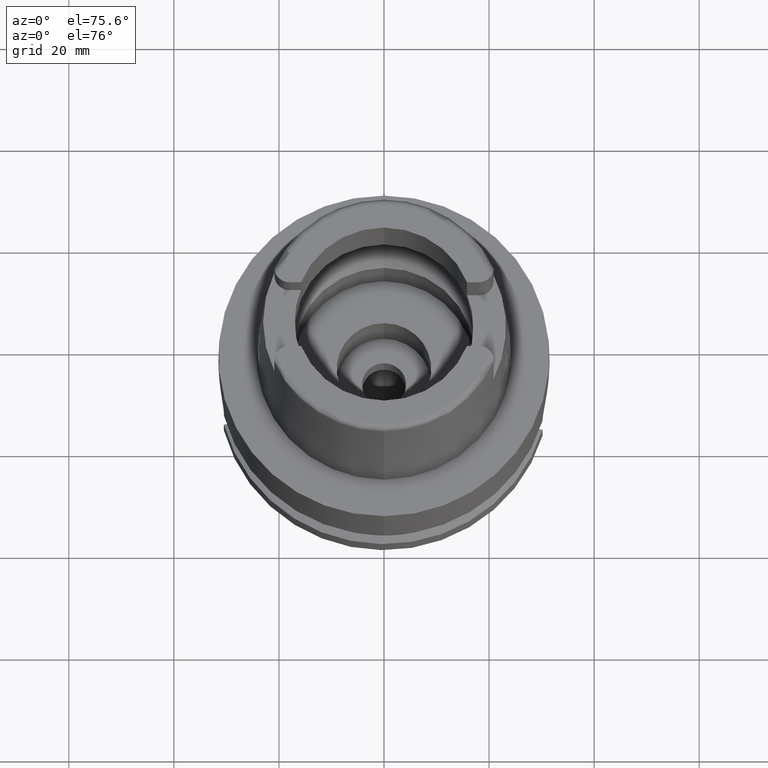
[diagram: clean part render]
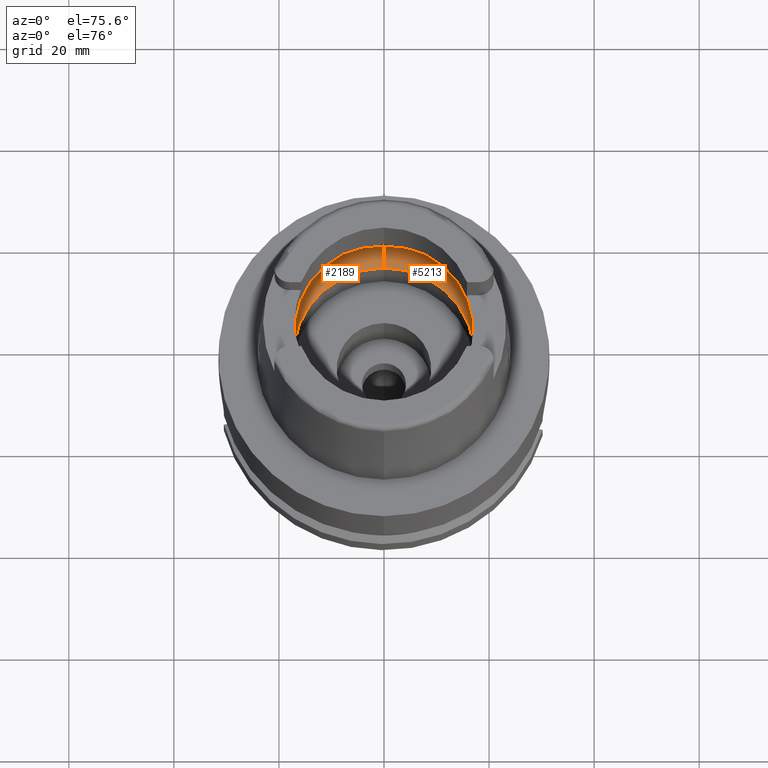
[diagram: same view with one multi-face feature highlighted, each face labeled with its STEP entity id]
A machine part, auxiliary view. The highlighted faces form ONE feature: a constant-radius fillet chain: 2 tangent blend faces with common blend radius 8 mm. The faces share edges in the B-rep.
Their STEP definitions:
[1] entity #2189 (Torus):
#1 = ORIENTED_EDGE ( 'NONE', *, *, #5204, .F. ) ;
#68 = CARTESIAN_POINT ( 'NONE',  ( 0.0000000000000000000, 20.00000000000000000, 6.186348233825000875 ) ) ;
#105 = CARTESIAN_POINT ( 'NONE',  ( -19.90996177496829489, 1.795767083468379210, 5.670284047755099088 ) ) ;
#131 = EDGE_CURVE ( 'NONE', #1648, #906, #5195, .T. ) ;
#136 = CARTESIAN_POINT ( 'NONE',  ( -19.93856738032333809, 0.8183990517462441661, 5.338642722792194206 ) ) ;
#287 = ORIENTED_EDGE ( 'NONE', *, *, #5310, .T. ) ;
#331 = DIRECTION ( 'NONE',  ( -0.9922879323327794543, 0.1239542631244973381, 0.0000000000000000000 ) ) ;
#374 = CARTESIAN_POINT ( 'NONE',  ( -19.92467852483092017, -1.357963622241911139, 5.504503570019525505 ) ) ;
#547 = CARTESIAN_POINT ( 'NONE',  ( -19.93655272268687639, 0.9259470818443067408, 5.364515645285496959 ) ) ;
#778 = CARTESIAN_POINT ( 'NONE',  ( 0.0000000000000000000, -17.25000000000000000, 0.1500000000000999700 ) ) ;
#789 = DIRECTION ( 'NONE',  ( 0.0000000000000000000, 1.000000000000000000, 0.0000000000000000000 ) ) ;
#818 = CARTESIAN_POINT ( 'NONE',  ( 0.0000000000000000000, 0.0000000000000000000, 6.186348233825000875 ) ) ;
#830 = DIRECTION ( 'NONE',  ( 0.0000000000000000000, -1.000000000000000000, 0.0000000000000000000 ) ) ;
#906 = VERTEX_POINT ( 'NONE', #1297 ) ;
#951 = AXIS2_PLACEMENT_3D ( 'NONE', #818, #2120, #331 ) ;
#1058 = CARTESIAN_POINT ( 'NONE',  ( -19.93096204774570879, 1.157762075072081620, 5.432521242665883321 ) ) ;
#1089 = CARTESIAN_POINT ( 'NONE',  ( -19.94501428475999916, 0.2479290550739760568, 5.249999999999999112 ) ) ;
#1182 = CARTESIAN_POINT ( 'NONE',  ( -19.86454009060478398, -2.328734643576319652, 6.053875549024845704 ) ) ;
#1237 = CARTESIAN_POINT ( 'NONE',  ( -19.94501428475999916, -0.4959087842382808309, 5.249999999999998224 ) ) ;
#1297 = CARTESIAN_POINT ( 'NONE',  ( -19.84575864665999845, -2.479085262491000030, 6.186348233825000875 ) ) ;
#1314 = CARTESIAN_POINT ( 'NONE',  ( -19.92208718948823076, -1.429900174883156350, 5.533077591732342704 ) ) ;
#1320 = DIRECTION ( 'NONE',  ( 0.0000000000000000000, 1.000000000000000000, 0.0000000000000000000 ) ) ;
#1508 = VERTEX_POINT ( 'NONE', #5577 ) ;
#1565 = CARTESIAN_POINT ( 'NONE',  ( 0.0000000000000000000, -12.00000000000000000, 6.186348233825000875 ) ) ;
#1568 = VERTEX_POINT ( 'NONE', #2556 ) ;
#1595 = TOROIDAL_SURFACE ( 'NONE', #4776, 12.00000000000000000, 8.000000000000000000 ) ;
#1648 = VERTEX_POINT ( 'NONE', #4788 ) ;
#1663 = EDGE_LOOP ( 'NONE', ( #1933, #1, #2192, #287, #5545, #4476, #4730 ) ) ;
#1708 = CARTESIAN_POINT ( 'NONE',  ( -19.90056925889987127, -1.871018165099524122, 5.748162139564427342 ) ) ;
#1746 = DIRECTION ( 'NONE',  ( 0.0000000000000000000, 0.6562500000000006661, -0.7545435292281016393 ) ) ;
#1933 = ORIENTED_EDGE ( 'NONE', *, *, #131, .F. ) ;
#1955 = CARTESIAN_POINT ( 'NONE',  ( -19.92591906827003001, 1.321585501799986462, 5.490587994735173893 ) ) ;
#2020 = AXIS2_PLACEMENT_3D ( 'NONE', #4631, #2989, #830 ) ;
#2080 = CARTESIAN_POINT ( 'NONE',  ( -19.91448717745985775, -1.610408095139941542, 5.612876396282293179 ) ) ;
#2085 = CARTESIAN_POINT ( 'NONE',  ( 0.0000000000000000000, 0.0000000000000000000, 0.1500000000000999700 ) ) ;
#2108 = EDGE_CURVE ( 'NONE', #1568, #2867, #5505, .T. ) ;
#2120 = DIRECTION ( 'NONE',  ( 0.0000000000000000000, 0.0000000000000000000, -1.000000000000000000 ) ) ;
#2152 = CIRCLE ( 'NONE', #5336, 7.999999999999992895 ) ;
#2189 = ADVANCED_FACE ( 'NONE', ( #3912 ), #1595, .F. ) ;
#2192 = ORIENTED_EDGE ( 'NONE', *, *, #2108, .F. ) ;
#2197 = CARTESIAN_POINT ( 'NONE',  ( -19.92547252417883641, -1.334867513091082314, 5.495621353218018257 ) ) ;
#2269 = CARTESIAN_POINT ( 'NONE',  ( -19.92607492902601507, 1.316891584246879576, 5.488826718527257675 ) ) ;
#2349 = EDGE_CURVE ( 'NONE', #906, #3630, #3478, .T. ) ;
#2455 = B_SPLINE_CURVE_WITH_KNOTS ( 'NONE', 3,
 ( #5402, #1089, #3182, #136, #547, #3272, #1058, #2750, #4522, #4007, #2269, #1955, #105, #5434, #4915 ),
 .UNSPECIFIED., .F., .F.,
 ( 4, 2, 2, 1, 1, 1, 2, 2, 4 ),
 ( 0.0000000000000000000, 0.2499999999999942268, 0.3749999999999913958, 0.4374999999999900635, 0.4687499999999894529, 0.4843749999999892863, 0.4921874999999892308, 0.4999999999999892308, 1.000000000000000000 ),
 .UNSPECIFIED. ) ;
#2556 = CARTESIAN_POINT ( 'NONE',  ( 0.0000000000000000000, 17.25000000000000000, 0.1500000000000999700 ) ) ;
#2750 = CARTESIAN_POINT ( 'NONE',  ( -19.92840595086944688, 1.244192535815689116, 5.462252019518305524 ) ) ;
#2781 = CARTESIAN_POINT ( 'NONE',  ( -19.94501428475999916, 0.0000000000000000000, 5.250000000000000000 ) ) ;
#2867 = VERTEX_POINT ( 'NONE', #778 ) ;
#2870 = DIRECTION ( 'NONE',  ( -1.000000000000000000, 0.0000000000000000000, 0.0000000000000000000 ) ) ;
#2953 = DIRECTION ( 'NONE',  ( 0.0000000000000000000, -0.6562500000000006661, -0.7545435292281016393 ) ) ;
#2968 = CARTESIAN_POINT ( 'NONE',  ( -19.94501428475999916, 0.0000000000000000000, 5.250000000000000000 ) ) ;
#2989 = DIRECTION ( 'NONE',  ( 0.0000000000000000000, 0.0000000000000000000, -1.000000000000000000 ) ) ;
#3002 = CARTESIAN_POINT ( 'NONE',  ( 0.0000000000000000000, 12.00000000000000000, 6.186348233825000875 ) ) ;
#3063 = CIRCLE ( 'NONE', #3244, 7.999999999999992895 ) ;
#3182 = CARTESIAN_POINT ( 'NONE',  ( -19.94340255865083833, 0.4848947565498933909, 5.274596189388688572 ) ) ;
#3244 = AXIS2_PLACEMENT_3D ( 'NONE', #1565, #2870, #2953 ) ;
#3272 = CARTESIAN_POINT ( 'NONE',  ( -19.93292633894125032, 1.081457122330341747, 5.408919853929954336 ) ) ;
#3432 = EDGE_CURVE ( 'NONE', #1508, #5222, #5119, .T. ) ;
#3473 = CARTESIAN_POINT ( 'NONE',  ( -19.90654609288262122, -1.769936306168619966, 5.691842260241858575 ) ) ;
#3478 = B_SPLINE_CURVE_WITH_KNOTS ( 'NONE', 3,
 ( #5077, #1182, #4220, #1708, #3473, #2080, #3845, #1314, #3821, #374, #3878, #2197, #5122, #1237, #2968 ),
 .UNSPECIFIED., .F., .F.,
 ( 4, 2, 2, 1, 1, 1, 2, 2, 4 ),
 ( 0.0000000000000000000, 0.2499999999999957812, 0.3749999999999935607, 0.4374999999999926725, 0.4687499999999921729, 0.4843749999999920064, 0.4921874999999919509, 0.4999999999999920064, 1.000000000000000000 ),
 .UNSPECIFIED. ) ;
#3509 = CARTESIAN_POINT ( 'NONE',  ( 0.0000000000000000000, 0.0000000000000000000, 6.186348233825000875 ) ) ;
#3630 = VERTEX_POINT ( 'NONE', #2781 ) ;
#3676 = AXIS2_PLACEMENT_3D ( 'NONE', #2085, #5562, #1320 ) ;
#3821 = CARTESIAN_POINT ( 'NONE',  ( -19.92391792695806529, -1.379670552742549017, 5.512962522875360705 ) ) ;
#3845 = CARTESIAN_POINT ( 'NONE',  ( -19.91820167814924503, -1.528670811425639542, 5.574773783465068355 ) ) ;
#3878 = CARTESIAN_POINT ( 'NONE',  ( -19.92518025587951058, -1.343452463015866627, 5.498900748199903710 ) ) ;
#3912 = FACE_OUTER_BOUND ( 'NONE', #1663, .T. ) ;
#4007 = CARTESIAN_POINT ( 'NONE',  ( -19.92647156474819425, 1.304855687904770578, 5.484336066838738866 ) ) ;
#4220 = CARTESIAN_POINT ( 'NONE',  ( -19.88059042415784816, -2.158397635262351066, 5.925190505596781065 ) ) ;
#4476 = ORIENTED_EDGE ( 'NONE', *, *, #4973, .F. ) ;
#4522 = CARTESIAN_POINT ( 'NONE',  ( -19.92706179647762355, 1.286754988675302247, 5.477635449957110048 ) ) ;
#4631 = CARTESIAN_POINT ( 'NONE',  ( 0.0000000000000000000, 0.0000000000000000000, 6.186348233825000875 ) ) ;
#4688 = DIRECTION ( 'NONE',  ( 0.0000000000000000000, 0.0000000000000000000, 1.000000000000000000 ) ) ;
#4730 = ORIENTED_EDGE ( 'NONE', *, *, #2349, .F. ) ;
#4775 = DIRECTION ( 'NONE',  ( 1.000000000000000000, 0.0000000000000000000, 0.0000000000000000000 ) ) ;
#4776 = AXIS2_PLACEMENT_3D ( 'NONE', #3509, #4688, #789 ) ;
#4788 = CARTESIAN_POINT ( 'NONE',  ( 0.0000000000000000000, -20.00000000000000000, 6.186348233825000875 ) ) ;
#4915 = CARTESIAN_POINT ( 'NONE',  ( -19.84575864665999845, 2.479085262489999941, 6.186348233825000875 ) ) ;
#4973 = EDGE_CURVE ( 'NONE', #3630, #1508, #2455, .T. ) ;
#5077 = CARTESIAN_POINT ( 'NONE',  ( -19.84575864665999845, -2.479085262491000030, 6.186348233825000875 ) ) ;
#5119 = CIRCLE ( 'NONE', #951, 20.00000000000001421 ) ;
#5122 = CARTESIAN_POINT ( 'NONE',  ( -19.93856751838270824, -0.9457802407118157673, 5.348172554885747054 ) ) ;
#5195 = CIRCLE ( 'NONE', #2020, 20.00000000000000000 ) ;
#5204 = EDGE_CURVE ( 'NONE', #2867, #1648, #3063, .T. ) ;
#5222 = VERTEX_POINT ( 'NONE', #68 ) ;
#5310 = EDGE_CURVE ( 'NONE', #1568, #5222, #2152, .T. ) ;
#5336 = AXIS2_PLACEMENT_3D ( 'NONE', #3002, #4775, #1746 ) ;
#5402 = CARTESIAN_POINT ( 'NONE',  ( -19.94501428475999916, 0.0000000000000000000, 5.250000000000000000 ) ) ;
#5434 = CARTESIAN_POINT ( 'NONE',  ( -19.88332346670495809, 2.178368557155442531, 5.921389235933154360 ) ) ;
#5505 = CIRCLE ( 'NONE', #3676, 17.25000000000000000 ) ;
#5545 = ORIENTED_EDGE ( 'NONE', *, *, #3432, .F. ) ;
#5562 = DIRECTION ( 'NONE',  ( 0.0000000000000000000, 0.0000000000000000000, 1.000000000000000000 ) ) ;
#5577 = CARTESIAN_POINT ( 'NONE',  ( -19.84575864665999845, 2.479085262489999941, 6.186348233825000875 ) ) ;
[2] entity #5213 (Torus):
#44 = CIRCLE ( 'NONE', #5324, 20.00000000000000000 ) ;
#57 = CARTESIAN_POINT ( 'NONE',  ( 0.0000000000000000000, 0.0000000000000000000, 6.186348233825000875 ) ) ;
#62 = EDGE_CURVE ( 'NONE', #2867, #1568, #5022, .T. ) ;
#68 = CARTESIAN_POINT ( 'NONE',  ( 0.0000000000000000000, 20.00000000000000000, 6.186348233825000875 ) ) ;
#71 = ORIENTED_EDGE ( 'NONE', *, *, #4656, .F. ) ;
#154 = VERTEX_POINT ( 'NONE', #465 ) ;
#465 = CARTESIAN_POINT ( 'NONE',  ( 19.94501428475999916, 0.0000000000000000000, 5.250000000000000000 ) ) ;
#556 = DIRECTION ( 'NONE',  ( 0.0000000000000000000, 0.0000000000000000000, -1.000000000000000000 ) ) ;
#623 = AXIS2_PLACEMENT_3D ( 'NONE', #4803, #1718, #3863 ) ;
#656 = CARTESIAN_POINT ( 'NONE',  ( 19.90654626797081761, 1.769934426146181128, 5.691841251131339874 ) ) ;
#703 = CIRCLE ( 'NONE', #2963, 20.00000000000001421 ) ;
#726 = CARTESIAN_POINT ( 'NONE',  ( 19.93856666885426776, -0.8185636124059638696, 5.338679045133562617 ) ) ;
#749 = CARTESIAN_POINT ( 'NONE',  ( 19.94501428476000271, -0.2480012822880987844, 5.249999999999999112 ) ) ;
#775 = CARTESIAN_POINT ( 'NONE',  ( 19.94501428475999916, 0.0000000000000000000, 5.250000000000000000 ) ) ;
#778 = CARTESIAN_POINT ( 'NONE',  ( 0.0000000000000000000, -17.25000000000000000, 0.1500000000000999700 ) ) ;
#865 = DIRECTION ( 'NONE',  ( 0.9922879323327794543, -0.1239542631244973381, 0.0000000000000000000 ) ) ;
#1009 = EDGE_CURVE ( 'NONE', #4363, #154, #4657, .T. ) ;
#1464 = CARTESIAN_POINT ( 'NONE',  ( 19.84575864665999845, 2.479085262491000030, 6.186348233825000875 ) ) ;
#1496 = CARTESIAN_POINT ( 'NONE',  ( 19.92518041982365418, 1.343450277255565872, 5.498899909475031045 ) ) ;
#1541 = CARTESIAN_POINT ( 'NONE',  ( 19.84575864665999845, -2.479085262491000030, 6.186348233825000875 ) ) ;
#1565 = CARTESIAN_POINT ( 'NONE',  ( 0.0000000000000000000, -12.00000000000000000, 6.186348233825000875 ) ) ;
#1568 = VERTEX_POINT ( 'NONE', #2556 ) ;
#1620 = CARTESIAN_POINT ( 'NONE',  ( 19.93655178888372248, -0.9261198900591437466, 5.364559530321087344 ) ) ;
#1648 = VERTEX_POINT ( 'NONE', #4788 ) ;
#1680 = DIRECTION ( 'NONE',  ( 0.0000000000000000000, 0.0000000000000000000, -1.000000000000000000 ) ) ;
#1718 = DIRECTION ( 'NONE',  ( 0.0000000000000000000, 0.0000000000000000000, 1.000000000000000000 ) ) ;
#1723 = VERTEX_POINT ( 'NONE', #1541 ) ;
#1746 = DIRECTION ( 'NONE',  ( 0.0000000000000000000, 0.6562500000000006661, -0.7545435292281016393 ) ) ;
#2069 = CARTESIAN_POINT ( 'NONE',  ( 19.88332301270218849, -2.178372191595286722, 5.921392438207989883 ) ) ;
#2095 = CARTESIAN_POINT ( 'NONE',  ( 19.92607283891191727, -1.317061137141596561, 5.488890315884850324 ) ) ;
#2123 = ORIENTED_EDGE ( 'NONE', *, *, #2494, .F. ) ;
#2152 = CIRCLE ( 'NONE', #5336, 7.999999999999992895 ) ;
#2233 = FACE_OUTER_BOUND ( 'NONE', #2837, .T. ) ;
#2275 = CARTESIAN_POINT ( 'NONE',  ( 19.84575864665999845, 2.479085262491000030, 6.186348233825000875 ) ) ;
#2372 = CARTESIAN_POINT ( 'NONE',  ( 19.90056942649606597, 1.871016442818389525, 5.748161141865908874 ) ) ;
#2431 = CARTESIAN_POINT ( 'NONE',  ( 0.0000000000000000000, 0.0000000000000000000, 0.1500000000000999700 ) ) ;
#2444 = CARTESIAN_POINT ( 'NONE',  ( 19.93096049696546856, -1.157939335591919860, 5.432578789541300246 ) ) ;
#2470 = CARTESIAN_POINT ( 'NONE',  ( 19.92705981527248937, -1.286926606873724177, 5.477698152406411225 ) ) ;
#2494 = EDGE_CURVE ( 'NONE', #1723, #1648, #703, .T. ) ;
#2518 = ORIENTED_EDGE ( 'NONE', *, *, #5310, .F. ) ;
#2520 = CARTESIAN_POINT ( 'NONE',  ( 19.92646951840612246, -1.305026090026948804, 5.484399317726082579 ) ) ;
#2556 = CARTESIAN_POINT ( 'NONE',  ( 0.0000000000000000000, 17.25000000000000000, 0.1500000000000999700 ) ) ;
#2559 = EDGE_CURVE ( 'NONE', #5222, #4363, #44, .T. ) ;
#2707 = ORIENTED_EDGE ( 'NONE', *, *, #5204, .T. ) ;
#2803 = CARTESIAN_POINT ( 'NONE',  ( 19.91448735469504427, 1.610406046188481932, 5.612875421313382240 ) ) ;
#2831 = CARTESIAN_POINT ( 'NONE',  ( 19.92547268850448816, 1.334865291962832767, 5.495620507227335416 ) ) ;
#2837 = EDGE_LOOP ( 'NONE', ( #5058, #5300, #2518, #5280, #2707, #2123, #71 ) ) ;
#2867 = VERTEX_POINT ( 'NONE', #778 ) ;
#2870 = DIRECTION ( 'NONE',  ( -1.000000000000000000, 0.0000000000000000000, 0.0000000000000000000 ) ) ;
#2926 = CARTESIAN_POINT ( 'NONE',  ( 19.90996060949646207, -1.795819319521763990, 5.670329520825307057 ) ) ;
#2953 = DIRECTION ( 'NONE',  ( 0.0000000000000000000, -0.6562500000000006661, -0.7545435292281016393 ) ) ;
#2963 = AXIS2_PLACEMENT_3D ( 'NONE', #5580, #1680, #865 ) ;
#2983 = CARTESIAN_POINT ( 'NONE',  ( 19.94340238078356720, -0.4850176595367738930, 5.274610361541468784 ) ) ;
#3002 = CARTESIAN_POINT ( 'NONE',  ( 0.0000000000000000000, 12.00000000000000000, 6.186348233825000875 ) ) ;
#3063 = CIRCLE ( 'NONE', #3244, 7.999999999999992895 ) ;
#3111 = AXIS2_PLACEMENT_3D ( 'NONE', #2431, #4600, #4141 ) ;
#3244 = AXIS2_PLACEMENT_3D ( 'NONE', #1565, #2870, #2953 ) ;
#3288 = CARTESIAN_POINT ( 'NONE',  ( 19.94501428475999916, 0.0000000000000000000, 5.250000000000000000 ) ) ;
#3357 = CARTESIAN_POINT ( 'NONE',  ( 19.92591691872320681, -1.321755966737424792, 5.490652197696729075 ) ) ;
#3615 = B_SPLINE_CURVE_WITH_KNOTS ( 'NONE', 3,
 ( #775, #749, #2983, #726, #1620, #4242, #2444, #3753, #2470, #2520, #2095, #3357, #2926, #2069, #4672 ),
 .UNSPECIFIED., .F., .F.,
 ( 4, 2, 2, 1, 1, 1, 2, 2, 4 ),
 ( 0.0000000000000000000, 0.2499999999999987788, 0.3749999999999982792, 0.4374999999999980571, 0.4687499999999978906, 0.4843749999999975020, 0.4921874999999975575, 0.4999999999999975575, 1.000000000000000000 ),
 .UNSPECIFIED. ) ;
#3753 = CARTESIAN_POINT ( 'NONE',  ( 19.92840411800285594, -1.244366584479167814, 5.462313247185328180 ) ) ;
#3863 = DIRECTION ( 'NONE',  ( 0.0000000000000000000, 1.000000000000000000, 0.0000000000000000000 ) ) ;
#4111 = CARTESIAN_POINT ( 'NONE',  ( 19.94501428475999560, 0.4959095983523816309, 5.249999999999999112 ) ) ;
#4141 = DIRECTION ( 'NONE',  ( 0.0000000000000000000, -1.000000000000000000, 0.0000000000000000000 ) ) ;
#4143 = CARTESIAN_POINT ( 'NONE',  ( 19.88059055109615159, 2.158396495719459462, 5.925189677144884648 ) ) ;
#4242 = CARTESIAN_POINT ( 'NONE',  ( 19.93292500493674524, -1.081634238850528451, 5.408973163817647034 ) ) ;
#4363 = VERTEX_POINT ( 'NONE', #2275 ) ;
#4518 = TOROIDAL_SURFACE ( 'NONE', #623, 12.00000000000000000, 8.000000000000000000 ) ;
#4541 = CARTESIAN_POINT ( 'NONE',  ( 19.91820185418519884, 1.528668694906667236, 5.574772838317966439 ) ) ;
#4600 = DIRECTION ( 'NONE',  ( 0.0000000000000000000, 0.0000000000000000000, 1.000000000000000000 ) ) ;
#4656 = EDGE_CURVE ( 'NONE', #154, #1723, #3615, .T. ) ;
#4657 = B_SPLINE_CURVE_WITH_KNOTS ( 'NONE', 3,
 ( #1464, #4932, #4143, #2372, #656, #2803, #4541, #5481, #5078, #5052, #1496, #2831, #5020, #4111, #3288 ),
 .UNSPECIFIED., .F., .F.,
 ( 4, 2, 2, 1, 1, 1, 2, 2, 4 ),
 ( 0.0000000000000000000, 0.2500000000000033862, 0.3750000000000049405, 0.4375000000000056621, 0.4687500000000057176, 0.4843750000000056621, 0.4921875000000054956, 0.5000000000000053291, 1.000000000000000000 ),
 .UNSPECIFIED. ) ;
#4672 = CARTESIAN_POINT ( 'NONE',  ( 19.84575864665999845, -2.479085262491000030, 6.186348233825000875 ) ) ;
#4775 = DIRECTION ( 'NONE',  ( 1.000000000000000000, 0.0000000000000000000, 0.0000000000000000000 ) ) ;
#4788 = CARTESIAN_POINT ( 'NONE',  ( 0.0000000000000000000, -20.00000000000000000, 6.186348233825000875 ) ) ;
#4803 = CARTESIAN_POINT ( 'NONE',  ( 0.0000000000000000000, 0.0000000000000000000, 6.186348233825000875 ) ) ;
#4899 = DIRECTION ( 'NONE',  ( 0.0000000000000000000, 1.000000000000000000, 0.0000000000000000000 ) ) ;
#4932 = CARTESIAN_POINT ( 'NONE',  ( 19.86454016619522989, 2.328734038445912979, 6.053875015849456531 ) ) ;
#5020 = CARTESIAN_POINT ( 'NONE',  ( 19.93856757259323231, 0.9457801821284733679, 5.348172806034195759 ) ) ;
#5022 = CIRCLE ( 'NONE', #3111, 17.25000000000000000 ) ;
#5052 = CARTESIAN_POINT ( 'NONE',  ( 19.92467869001661995, 1.357961439187409525, 5.504502721927527986 ) ) ;
#5058 = ORIENTED_EDGE ( 'NONE', *, *, #1009, .F. ) ;
#5078 = CARTESIAN_POINT ( 'NONE',  ( 19.92391809393505397, 1.379668374353000937, 5.512961660982391265 ) ) ;
#5204 = EDGE_CURVE ( 'NONE', #2867, #1648, #3063, .T. ) ;
#5213 = ADVANCED_FACE ( 'NONE', ( #2233 ), #4518, .F. ) ;
#5222 = VERTEX_POINT ( 'NONE', #68 ) ;
#5280 = ORIENTED_EDGE ( 'NONE', *, *, #62, .F. ) ;
#5300 = ORIENTED_EDGE ( 'NONE', *, *, #2559, .F. ) ;
#5310 = EDGE_CURVE ( 'NONE', #1568, #5222, #2152, .T. ) ;
#5324 = AXIS2_PLACEMENT_3D ( 'NONE', #57, #556, #4899 ) ;
#5336 = AXIS2_PLACEMENT_3D ( 'NONE', #3002, #4775, #1746 ) ;
#5481 = CARTESIAN_POINT ( 'NONE',  ( 19.92208736014775994, 1.429898011590186924, 5.533076699460339754 ) ) ;
#5580 = CARTESIAN_POINT ( 'NONE',  ( 0.0000000000000000000, 0.0000000000000000000, 6.186348233825000875 ) ) ;